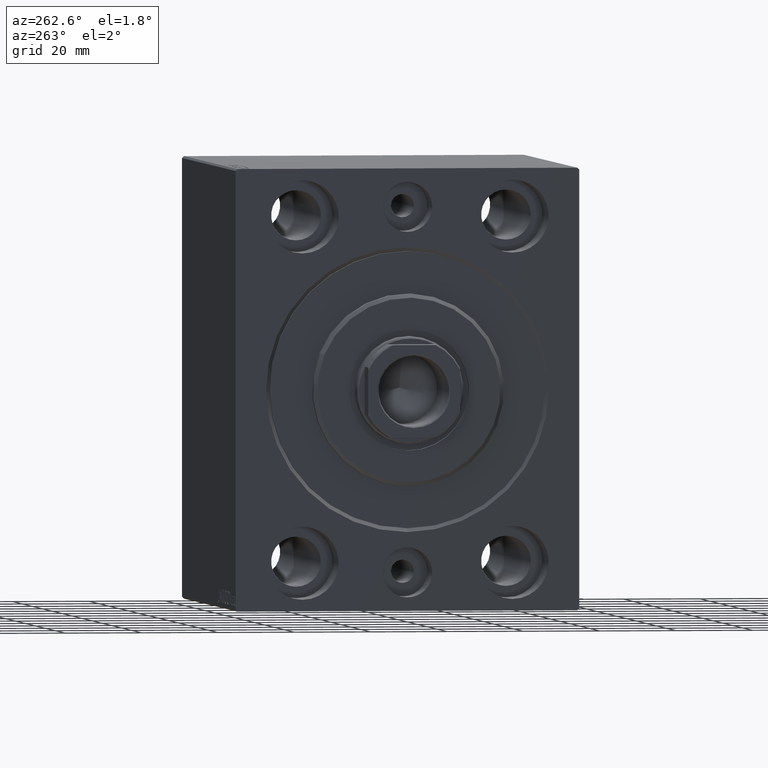
[diagram: clean part render]
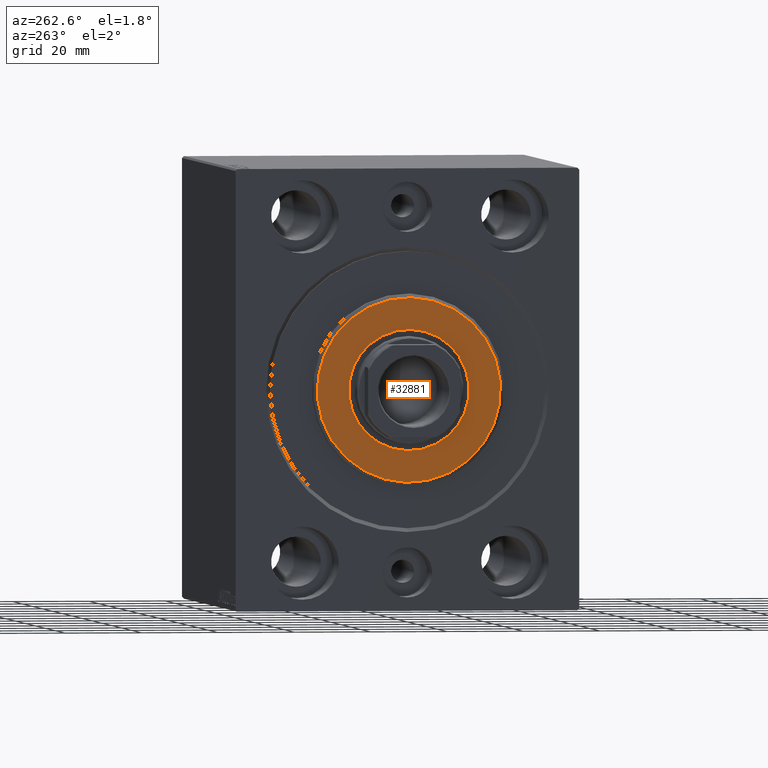
[diagram: same view with one face highlighted and labeled with its STEP entity id]
A machine part, auxiliary view. The second image highlights one B-rep face of the part: STEP entity #32881.
In plain terms, the highlighted planar face has unit normal (-1, 0, 0).
Its self-contained STEP definition (entity closure, byte-faithful):
#205 = CIRCLE ( 'NONE', #32022, 24.00000000000000711 ) ;
#1922 = DIRECTION ( 'NONE',  ( 1.000000000000000000, -0.000000000000000000, 0.000000000000000000 ) ) ;
#8606 = DIRECTION ( 'NONE',  ( 0.000000000000000000, 0.000000000000000000, -1.000000000000000000 ) ) ;
#9365 = AXIS2_PLACEMENT_3D ( 'NONE', #22976, #36470, #40442 ) ;
#9893 = AXIS2_PLACEMENT_3D ( 'NONE', #13383, #40829, #37511 ) ;
#9997 = CARTESIAN_POINT ( 'NONE',  ( 3.000000000000000000, 0.000000000000000000, 0.000000000000000000 ) ) ;
#10596 = VERTEX_POINT ( 'NONE', #37738 ) ;
#11550 = EDGE_CURVE ( 'NONE', #36781, #10596, #28439, .T. ) ;
#12301 = EDGE_CURVE ( 'NONE', #10596, #36781, #205, .T. ) ;
#13270 = ORIENTED_EDGE ( 'NONE', *, *, #25871, .T. ) ;
#13383 = CARTESIAN_POINT ( 'NONE',  ( 3.000000000000000000, 0.000000000000000000, 0.000000000000000000 ) ) ;
#13385 = ORIENTED_EDGE ( 'NONE', *, *, #15829, .T. ) ;
#13644 = EDGE_LOOP ( 'NONE', ( #13385, #13270 ) ) ;
#13686 = AXIS2_PLACEMENT_3D ( 'NONE', #9997, #20612, #19955 ) ;
#15147 = CARTESIAN_POINT ( 'NONE',  ( 3.000000000000000000, 3.000384657911015469E-15, -24.00000000000000711 ) ) ;
#15829 = EDGE_CURVE ( 'NONE', #31817, #36801, #26854, .T. ) ;
#17304 = ORIENTED_EDGE ( 'NONE', *, *, #11550, .T. ) ;
#19955 = DIRECTION ( 'NONE',  ( 0.000000000000000000, 0.000000000000000000, -1.000000000000000000 ) ) ;
#20612 = DIRECTION ( 'NONE',  ( -1.000000000000000000, 0.000000000000000000, -0.000000000000000000 ) ) ;
#22976 = CARTESIAN_POINT ( 'NONE',  ( 3.000000000000000000, 0.000000000000000000, 0.000000000000000000 ) ) ;
#25440 = CARTESIAN_POINT ( 'NONE',  ( 3.000000000000000000, 0.000000000000000000, 0.000000000000000000 ) ) ;
#25871 = EDGE_CURVE ( 'NONE', #36801, #31817, #29929, .T. ) ;
#26295 = DIRECTION ( 'NONE',  ( 0.000000000000000000, 0.000000000000000000, -1.000000000000000000 ) ) ;
#26853 = EDGE_LOOP ( 'NONE', ( #43405, #17304 ) ) ;
#26854 = CIRCLE ( 'NONE', #9893, 15.75000000000000000 ) ;
#27871 = AXIS2_PLACEMENT_3D ( 'NONE', #25440, #1922, #8606 ) ;
#28439 = CIRCLE ( 'NONE', #9365, 24.00000000000000711 ) ;
#29193 = FACE_OUTER_BOUND ( 'NONE', #26853, .T. ) ;
#29929 = CIRCLE ( 'NONE', #13686, 15.75000000000000000 ) ;
#31817 = VERTEX_POINT ( 'NONE', #41399 ) ;
#31865 = FACE_BOUND ( 'NONE', #13644, .T. ) ;
#32022 = AXIS2_PLACEMENT_3D ( 'NONE', #42901, #43105, #26295 ) ;
#32881 = ADVANCED_FACE ( 'NONE', ( #29193, #31865 ), #39154, .T. ) ;
#35087 = CARTESIAN_POINT ( 'NONE',  ( 3.000000000000000000, 1.928818708657080950E-15, -15.75000000000000000 ) ) ;
#36470 = DIRECTION ( 'NONE',  ( 1.000000000000000000, -0.000000000000000000, 0.000000000000000000 ) ) ;
#36781 = VERTEX_POINT ( 'NONE', #15147 ) ;
#36801 = VERTEX_POINT ( 'NONE', #35087 ) ;
#37511 = DIRECTION ( 'NONE',  ( 0.000000000000000000, 0.000000000000000000, -1.000000000000000000 ) ) ;
#37738 = CARTESIAN_POINT ( 'NONE',  ( 3.000000000000000000, 0.000000000000000000, 24.00000000000000711 ) ) ;
#39154 = PLANE ( 'NONE',  #27871 ) ;
#40442 = DIRECTION ( 'NONE',  ( 0.000000000000000000, 0.000000000000000000, -1.000000000000000000 ) ) ;
#40829 = DIRECTION ( 'NONE',  ( -1.000000000000000000, 0.000000000000000000, -0.000000000000000000 ) ) ;
#41399 = CARTESIAN_POINT ( 'NONE',  ( 3.000000000000000000, 0.000000000000000000, 15.75000000000000000 ) ) ;
#42901 = CARTESIAN_POINT ( 'NONE',  ( 3.000000000000000000, 0.000000000000000000, 0.000000000000000000 ) ) ;
#43105 = DIRECTION ( 'NONE',  ( 1.000000000000000000, -0.000000000000000000, 0.000000000000000000 ) ) ;
#43405 = ORIENTED_EDGE ( 'NONE', *, *, #12301, .T. ) ;